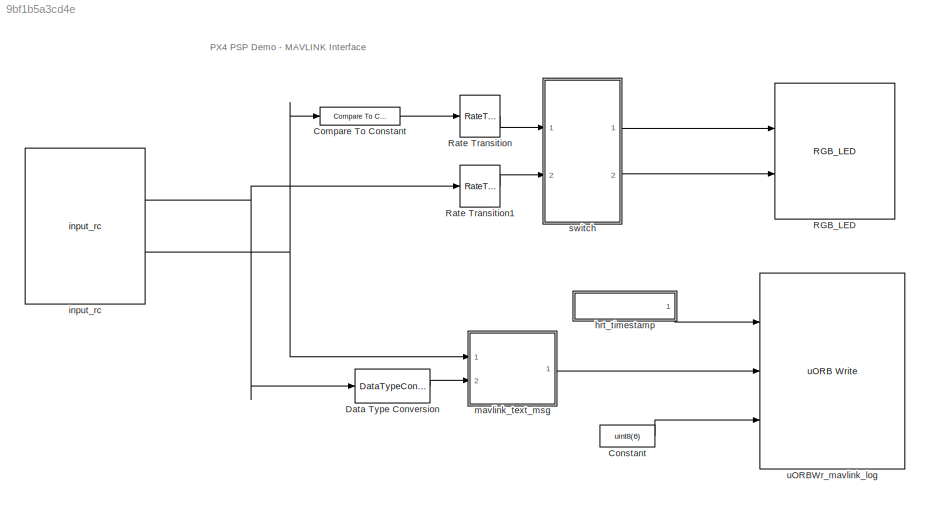
MODEL slx_9bf1b5a3cd4e
KIND model
CONFIG AbsTol = auto
CONFIG EnableMultiTasking = on
CONFIG FixedStep = auto
CONFIG MaxStep = auto
CONFIG MinStep = auto
CONFIG RelTol = 1e-3
CONFIG SampleTimeConstraint = Unconstrained
CONFIG Solver = FixedStepDiscrete
CONFIG SolverName = FixedStepDiscrete
CONFIG StartTime = 0.0
CONFIG StopTime = inf
BLOCK [Reference] Compare To Constant  REF=simulink/Logic and Bit
Operations/Compare
To Constant
  Ports = [1, 1]
  SourceBlock = simulink/Logic and Bit\nOperations/Compare\nTo Constant
  SourceProductBaseCode = SL
  SourceProductName = Simulink
  SourceType = Compare To Constant
BLOCK [Constant] Constant
  SampleTime = -1
  Value = uint8(6)
BLOCK [DataTypeConversion] Data Type Conversion
  OutDataTypeStr = uint32
  RndMeth = Floor
  SaturateOnIntegerOverflow = off
BLOCK [Reference] RGB_LED  REF=pixhawk_slib_sensors_actuators/RGB_LED
  Ports = [2]
  SourceBlock = pixhawk_slib_sensors_actuators/RGB_LED
  SourceProductName = Pixhawk Target Blocks
  SourceType = PX4_RGBLED - controls the mode and color of the Pixhawk RGB LED
BLOCK [RateTransition] Rate Transition
  OutPortSampleTime = 1
BLOCK [RateTransition] Rate Transition1
  OutPortSampleTime = 1
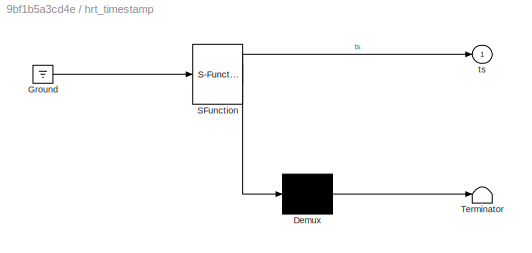
BLOCK [SubSystem] hrt_timestamp
  ErrorFcn = Stateflow.Translate.translate
  PermitHierarchicalResolution = ExplicitOnly
  Ports = [0, 1]
  RequestExecContextInheritance = off
  SFBlockType = MATLAB Function
  TreatAsAtomicUnit = on
  Variant = off
BLOCK [Demux] hrt_timestamp/ Demux 
  Outputs = 1
  Ports = [1, 1]
BLOCK [Ground] hrt_timestamp/ Ground 
BLOCK [S-Function] hrt_timestamp/ SFunction 
  EnableBusSupport = on
  FunctionName = sf_sfun
  PortCounts = [1 2]
  Ports = [1, 2]
  SFcnIsStateOwnerBlock = off
  SFunctionDeploymentMode = off
  Tag = Stateflow S-Function px4demo_mavlink_rc 1
BLOCK [Terminator] hrt_timestamp/ Terminator 
BLOCK [Outport] hrt_timestamp/ts
  IconDisplay = Port number
BLOCK [Reference] input_rc  REF=pixhawk_slib_sensors_actuators/input_rc
  Ports = [0, 2]
  SourceBlock = pixhawk_slib_sensors_actuators/input_rc
  SourceProductName = Pixhawk Target Blocks
  SourceType = PX4_Input_RC
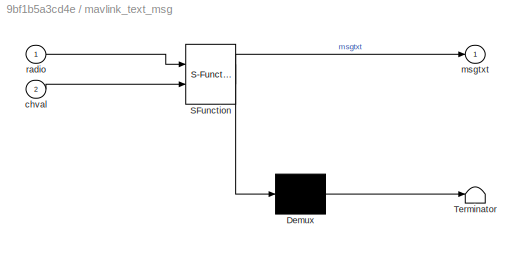
BLOCK [SubSystem] mavlink_text_msg
  ErrorFcn = Stateflow.Translate.translate
  PermitHierarchicalResolution = ExplicitOnly
  Ports = [2, 1]
  RequestExecContextInheritance = off
  SFBlockType = MATLAB Function
  TreatAsAtomicUnit = on
  Variant = off
BLOCK [Demux] mavlink_text_msg/ Demux 
  Outputs = 1
  Ports = [1, 1]
BLOCK [S-Function] mavlink_text_msg/ SFunction 
  EnableBusSupport = on
  FunctionName = sf_sfun
  PortCounts = [2 2]
  Ports = [2, 2]
  SFcnIsStateOwnerBlock = off
  SFunctionDeploymentMode = off
  Tag = Stateflow S-Function px4demo_mavlink_rc 2
BLOCK [Terminator] mavlink_text_msg/ Terminator 
BLOCK [Inport] mavlink_text_msg/chval
  IconDisplay = Port number
  Port = 2
BLOCK [Outport] mavlink_text_msg/msgtxt
  IconDisplay = Port number
BLOCK [Inport] mavlink_text_msg/radio
  IconDisplay = Port number
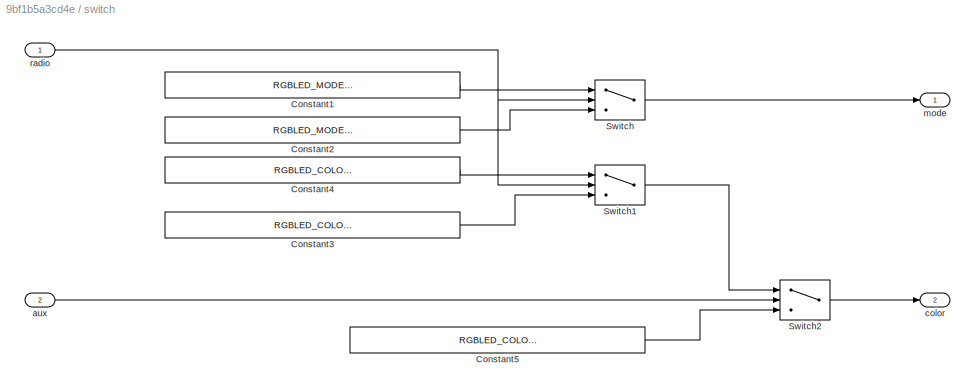
BLOCK [SubSystem] switch
  Ports = [2, 2]
  RequestExecContextInheritance = off
  Variant = off
BLOCK [Constant] switch/Constant1
  OutDataTypeStr = Enum: RGBLED_MODE_ENUM
  Value = RGBLED_MODE_ENUM.SL_MODE_BLINK_FAST
BLOCK [Constant] switch/Constant2
  OutDataTypeStr = Enum: RGBLED_MODE_ENUM
  Value = RGBLED_MODE_ENUM.SL_MODE_BREATHE
BLOCK [Constant] switch/Constant3
  OutDataTypeStr = Enum: RGBLED_COLOR_ENUM
  Value = RGBLED_COLOR_ENUM.SL_COLOR_RED
BLOCK [Constant] switch/Constant4
  OutDataTypeStr = Enum: RGBLED_COLOR_ENUM
  Value = RGBLED_COLOR_ENUM.SL_COLOR_BLUE
BLOCK [Constant] switch/Constant5
  OutDataTypeStr = Enum: RGBLED_COLOR_ENUM
  Value = RGBLED_COLOR_ENUM.SL_COLOR_PURPLE
BLOCK [Switch] switch/Switch
  Criteria = u2 ~= 0
  InputSameDT = off
  SaturateOnIntegerOverflow = off
  Threshold = 1500
BLOCK [Switch] switch/Switch1
  Criteria = u2 ~= 0
  InputSameDT = off
  SaturateOnIntegerOverflow = off
  Threshold = 1500
BLOCK [Switch] switch/Switch2
  Criteria = u2 > Threshold
  InputSameDT = off
  SaturateOnIntegerOverflow = off
  Threshold = 1500
BLOCK [Inport] switch/aux
  IconDisplay = Port number
  Port = 2
BLOCK [Outport] switch/color
  IconDisplay = Port number
  Port = 2
BLOCK [Outport] switch/mode
  IconDisplay = Port number
BLOCK [Inport] switch/radio
  IconDisplay = Port number
BLOCK [Reference] uORBWr_mavlink_log  REF=pixhawk_slib_uORB_RW/uORB Write
  Ports = [3]
  SourceBlock = pixhawk_slib_uORB_RW/uORB Write
  SourceProductName = Pixhawk Target Blocks
ANNOTATION (root): PX4 PSP Demo - MAVLINK Interface
LINE Compare To Constant:1 -> Rate Transition:1
LINE Constant:1 -> uORBWr_mavlink_log:3
LINE Data Type Conversion:1 -> mavlink_text_msg:2
LINE Rate Transition1:1 -> switch:2
LINE Rate Transition:1 -> switch:1
LINE hrt_timestamp:1 -> uORBWr_mavlink_log:1
NET input_rc:1 -> Data Type Conversion:1, Rate Transition1:1
NET input_rc:2 -> Compare To Constant:1, mavlink_text_msg:1
LINE mavlink_text_msg:1 -> uORBWr_mavlink_log:2
LINE switch/Constant1:1 -> switch/Switch:1
LINE switch/Constant2:1 -> switch/Switch:3
LINE switch/Constant3:1 -> switch/Switch1:3
LINE switch/Constant4:1 -> switch/Switch1:1
LINE switch/Constant5:1 -> switch/Switch2:3
LINE switch/Switch1:1 -> switch/Switch2:1
LINE switch/Switch2:1 -> switch/color:1
LINE switch/Switch:1 -> switch/mode:1
LINE switch/aux:1 -> switch/Switch2:2
NET switch/radio:1 -> switch/Switch1:2, switch/Switch:2
LINE switch:1 -> RGB_LED:1
LINE switch:2 -> RGB_LED:2
note: NET lines group one-source signal fan-out (src -> all destinations, sorted); 1:1 wires keep LINE
CHART hrt_timestamp states=1 transitions=1
  STATE_LABEL 'eML_blk_kernel()'
  STATE_LABEL "SCRIPT:\nfunction ts  = fcn\n% coder.cinclude('drivers/drv_hrt.h');\npersistent count\nif isempty(count)\n    count = 0;\nend\n\nhrt = 0;\nif coder.target('Rtw')\n    hrt = coder.ceval('(double)hrt_absolute_time');\nelse\n    hrt = count;\nend\nts = hrt;\n\ncount = count + 1;\n\n\n"
CHART mavlink_text_msg states=1 transitions=1
  STATE_LABEL 'eML_blk_kernel()'
  STATE_LABEL "SCRIPT:\nfunction msgtxt  = fcn(radio, chval)\n\n% coder.cinclude('drivers/drv_hrt.h');\n\npersistent count\nif isempty(count)\n    count = uint8('A');\nend\n\nmsgtxt = zeros(1,50,'uint8');\ncoder.ceval('sprintf', coder.wref(msgtxt), 'Simulink [%c] Radio %d Value %d', count, int32(radio), int32(chval));\n\ncount = count + uint8(1);\nif count == uint8('Z')\n    count = uint8('A');\nend\n\n\n"
